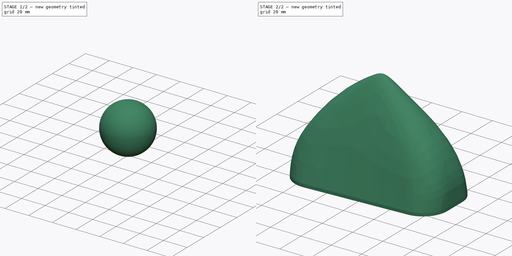
[diagram: build sequence overview — one tinted view per stage of 2, left to right]
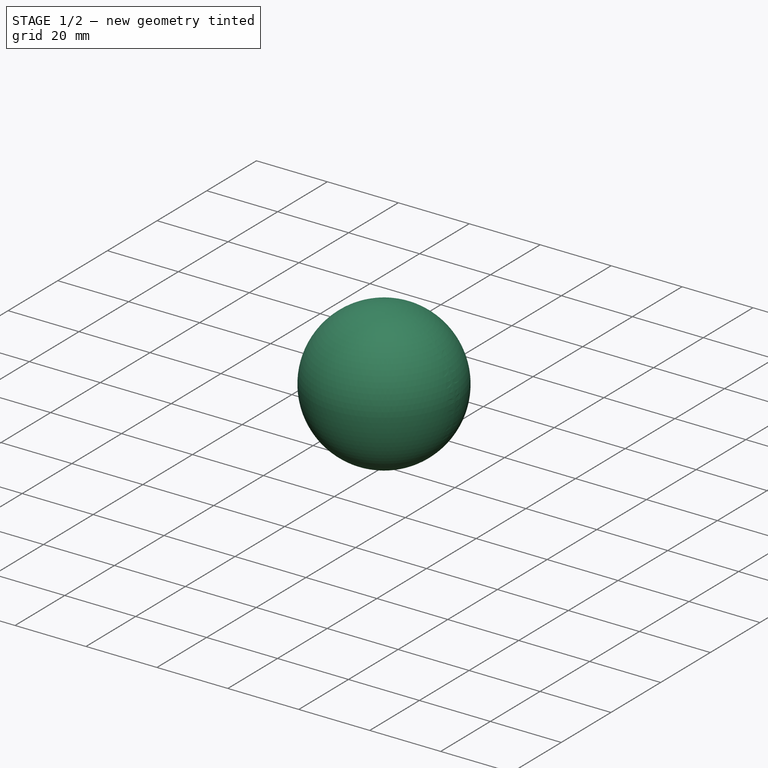
[diagram: stage 1 of 2 — iso view after this stage's code; geometry added in this stage tinted green]
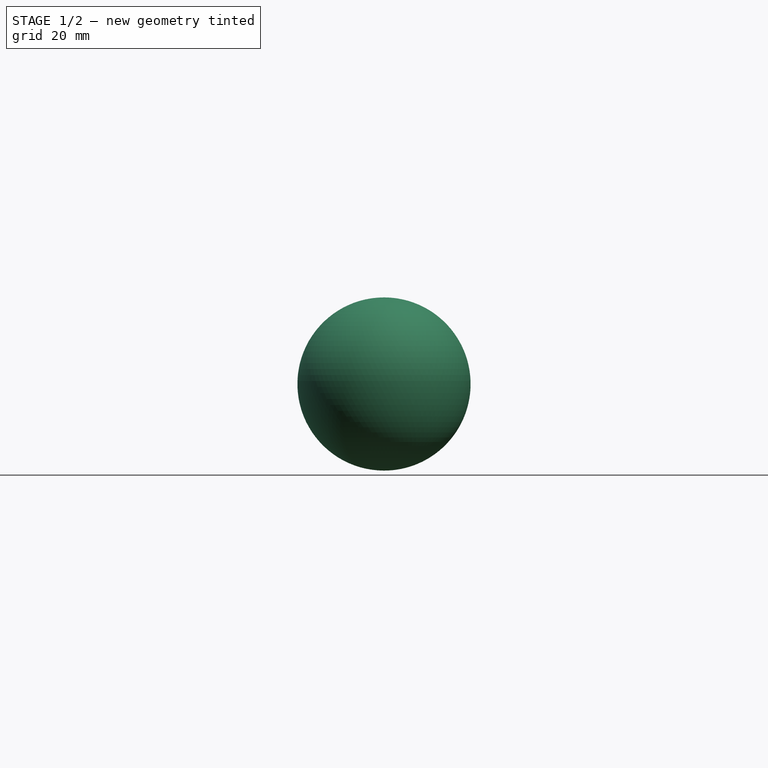
[diagram: stage 1 of 2 — front view after this stage's code; geometry added in this stage tinted green]
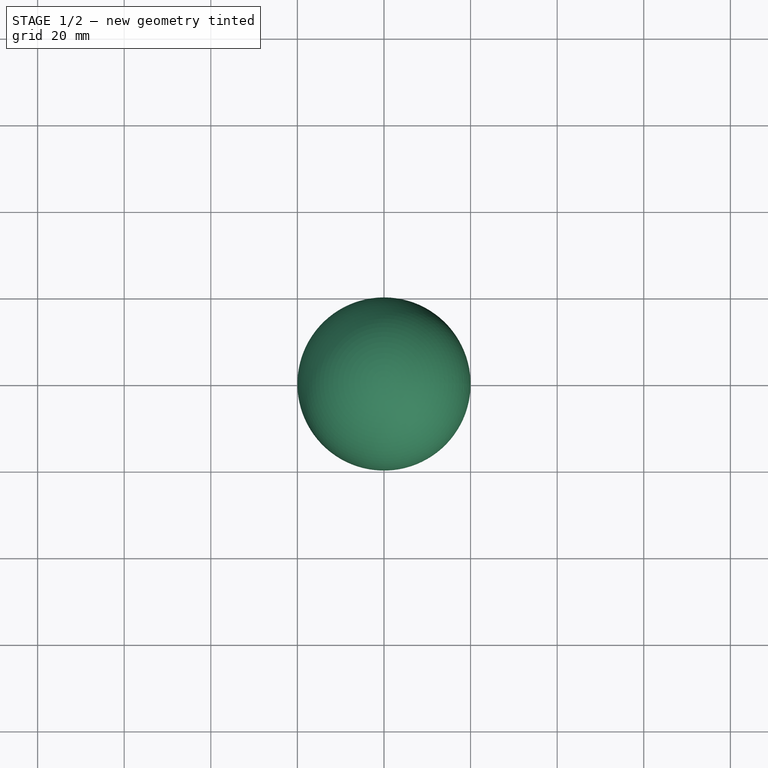
[diagram: stage 1 of 2 — top view after this stage's code; geometry added in this stage tinted green]
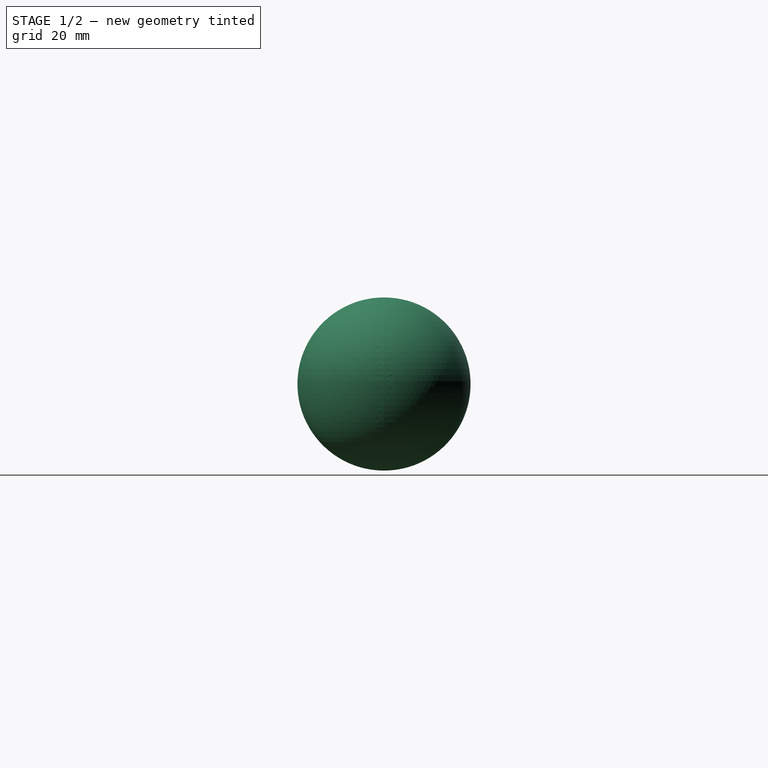
[diagram: stage 1 of 2 — right view after this stage's code; geometry added in this stage tinted green]
FCSTD DOCUMENT  (FreeCAD 0.21RUnknown)
Label: part32
License: All rights reserved
LicenseURL: http://en.wikipedia.org/wiki/All_rights_reserved
objects: Sketcher::SketchObject×3, Surface::Filling×1, Part::Extrusion×1, Part::MultiFuse×1, Part::Offset×1, Part::Sphere×1, Part::Feature×1, Part::Cut×1
note: 10 computed .brp shape members not serialized (recipe doc carries the construction recipe); baked Part::Feature solids carry a one-line shape summary decoded from their .brp

FEATURE [Sketcher::SketchObject] Sketch  label="BaseSketch"
  FullyConstrained = false
  sketch-geometry (10):
    g0: ArcOfCircle CenterX=-32.9186 CenterY=12.0697 CenterZ=0 NormalX=0 NormalY=0 NormalZ=1 AngleXU=0 Radius=15.8651 StartAngle=1.41817 EndAngle=3.14159
    g1: LineSegment StartX=-30.5066 StartY=27.7503 StartZ=0 EndX=35.3306 EndY=17.6232 EndZ=0
    g2: ArcOfCircle CenterX=32.9186 CenterY=1.94258 CenterZ=0 NormalX=0 NormalY=0 NormalZ=1 AngleXU=0 Radius=15.8651 StartAngle=1e-16 EndAngle=1.41817
    g3: LineSegment StartX=48.7836 StartY=1.94258 StartZ=0 EndX=48.7836 EndY=-12.0697 EndZ=0
    g4: ArcOfCircle CenterX=32.9186 CenterY=-12.0697 CenterZ=0 NormalX=0 NormalY=0 NormalZ=1 AngleXU=0 Radius=15.8651 StartAngle=4.76845 EndAngle=6.28319
    g5: LineSegment StartX=33.8075 StartY=-27.9098 StartZ=0 EndX=-32.0297 EndY=-31.6044 EndZ=0
    g6: ArcOfCircle CenterX=-32.9186 CenterY=-15.7643 CenterZ=0 NormalX=0 NormalY=0 NormalZ=1 AngleXU=0 Radius=15.8651 StartAngle=3.14159 EndAngle=4.76845
    g7: LineSegment StartX=-48.7836 StartY=-15.7643 StartZ=0 EndX=-48.7836 EndY=12.0697 EndZ=0
    g8: GeomPoint X=-48.7836 Y=30.5617 Z=0
    g9: GeomPoint X=48.7836 Y=-27.0694 Z=0
  constraints (18):
    c: Tangent(g0,g1) = 1.5708
    c: Tangent(g1,g2) = 1.5708
    c: Tangent(g2,g3) = 1.5708
    c: Tangent(g3,g4) = 1.5708
    c: Tangent(g4,g5) = 1.5708
    c: Tangent(g5,g6) = 1.5708
    c: Tangent(g6,g7) = 1.5708
    c: Tangent(g7,g0) = 1.5708
    c: Vertical(g3)
    c: Vertical(g7)
    c: Equal(g0,g2)
    c: Equal(g2,g4)
    c: Equal(g4,g6)
    c: PointOnObject(g8,g1)
    c: PointOnObject(g8,g7)
    c: PointOnObject(g9,g3)
    c: PointOnObject(g9,g5)
    c: Symmetric(g0,g4,g-1)
FEATURE [Sketcher::SketchObject] Sketch001  label="SurfaceProfile"
  AttachmentOffset = pos=(0,0,0) rot=(1,0,0;1.5708rad)
  ExternalGeometry = -> [Sketch]
  FullyConstrained = true
  MapMode = 49
  Placement = pos=(-48.7836,-15.7643,0) rot=(0.999642,0.01892,0.01892;1.57115rad)
  Support = -> [Sketch]
  sketch-geometry (1):
    g0: ArcOfCircle CenterX=48.8186 CenterY=0 CenterZ=0 NormalX=0 NormalY=0 NormalZ=1 AngleXU=0 Radius=48.8186 StartAngle=0 EndAngle=3.14159
  constraints (3):
    c: Coincident(g0,g-3)
    c: Coincident(g0,g-1)
    c: PointOnObject(g0,g-1)
FEATURE [Sketcher::SketchObject] Sketch002  label="SurfaceProfile2"
  AttachmentOffset = pos=(0,0,0) rot=(1,0,0;1.5708rad)
  ExternalGeometry = -> [Sketch]
  FullyConstrained = true
  MapMode = 49
  Placement = pos=(-48.7836,12.0697,0) rot=(0.997332,-0.051621,-0.051621;1.57347rad)
  Support = -> [Sketch]
  sketch-geometry (1):
    g0: ArcOfCircle CenterX=49.0457 CenterY=0 CenterZ=0 NormalX=0 NormalY=0 NormalZ=1 AngleXU=0 Radius=49.0457 StartAngle=-2.7e-15 EndAngle=3.14159
  constraints (3):
    c: Coincident(g0,g-1)
    c: Coincident(g0,g-3)
    c: PointOnObject(g0,g-1)
FEATURE [Surface::Filling] Surface
  Anisotropy = false
  BoundaryEdges = -> [Sketch]
  BoundaryOrder = [0,0,0,0,0,0,0,0]
  Degree = 3
  Iterations = 2
  MaximumDegree = 8
  MaximumSegments = 9
  PointsOnCurve = 15
  TolAngular = 0.01
  TolCurvature = 0.1
  Tolerance2d = 1e-05
  Tolerance3d = 0.0001
  UnboundEdges = -> [Sketch001,Sketch002]
  UnboundOrder = [0,0]
FEATURE [Part::Extrusion] Extrude
  Base = -> Sketch
  Dir = (0,0,1)
  DirMode = 2
  FaceMakerClass = Part::FaceMakerBullseye
  LengthFwd = -2
  LengthRev = 0
  Solid = false
  Symmetric = false
FEATURE [Part::MultiFuse] Fusion
  Shapes = -> [Surface,Extrude]
FEATURE [Part::Offset] Offset
  Fill = true
  Intersection = false
  Join = 0
  Mode = 0
  SelfIntersection = false
  Source = -> Fusion
  Value = -5
FEATURE [Part::Sphere] Sphere
  Angle1 = -90
  Angle2 = 90
  Angle3 = 360
  AttacherType = Attacher::AttachEngine3D
  Placement = pos=(0,20,24) rot=(0,0,1;0rad)
  Radius = 20
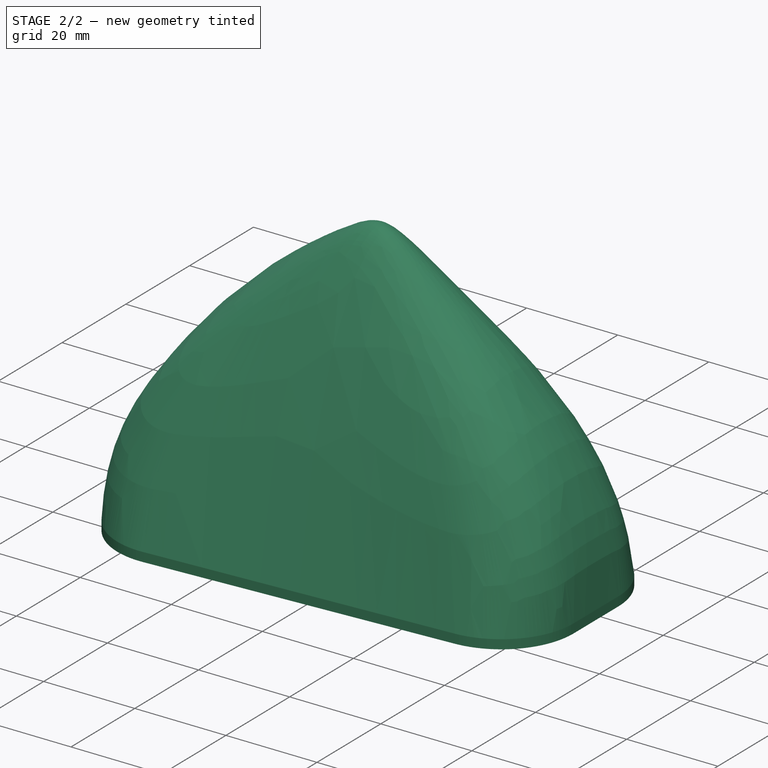
[diagram: stage 2 of 2 — iso view after this stage's code; geometry added in this stage tinted green]
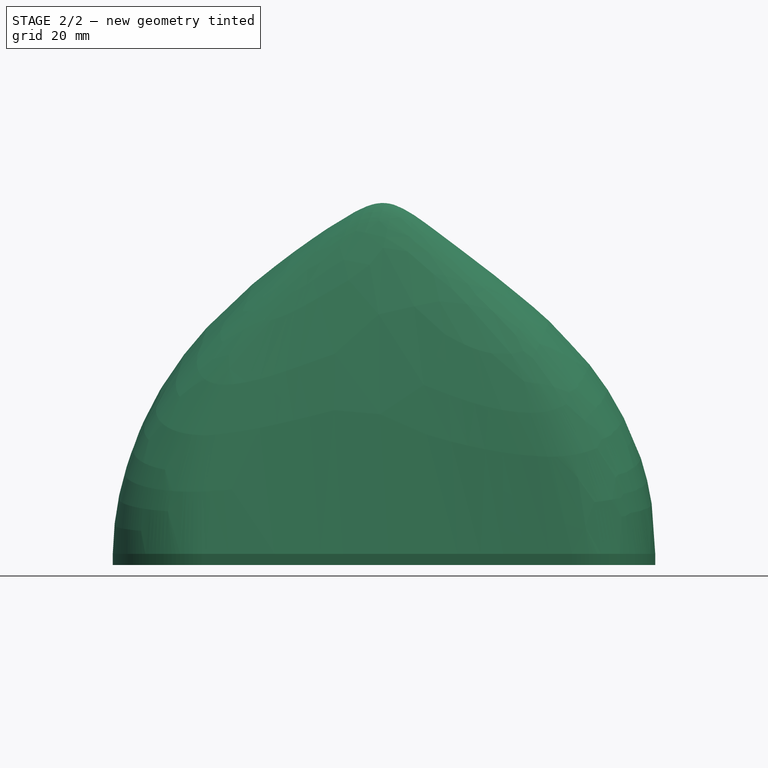
[diagram: stage 2 of 2 — front view after this stage's code; geometry added in this stage tinted green]
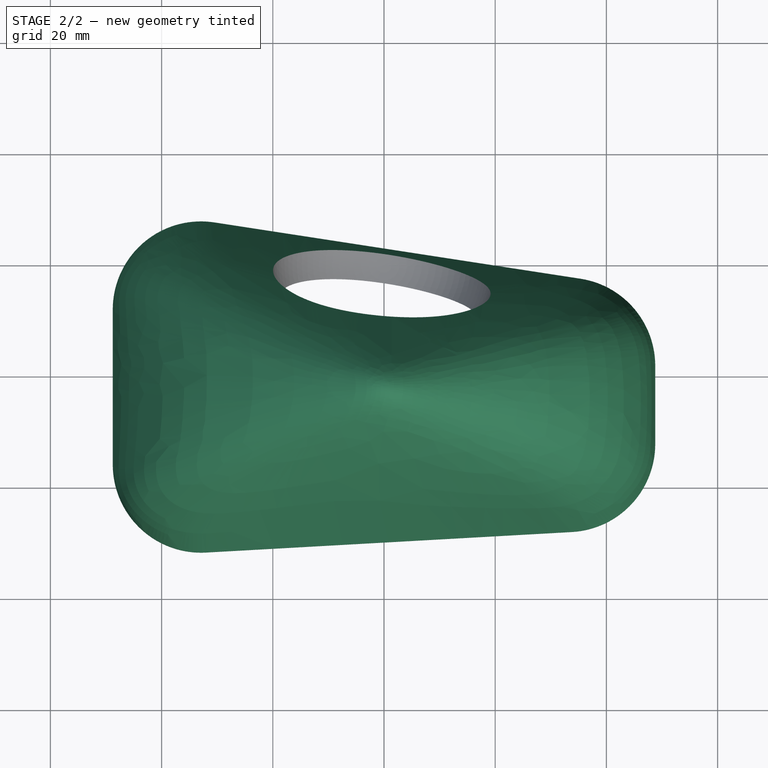
[diagram: stage 2 of 2 — top view after this stage's code; geometry added in this stage tinted green]
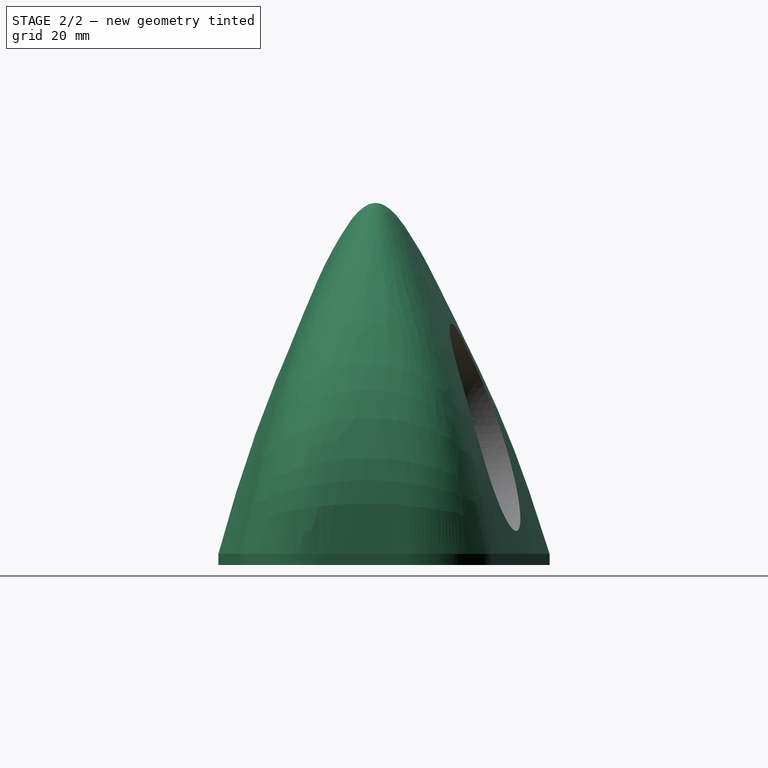
[diagram: stage 2 of 2 — right view after this stage's code; geometry added in this stage tinted green]
FEATURE [Part::Feature] Offset_solid  label="Offset (Solid)"
  shape: bbox 128.3 x 110.9 x 140.3 mm, 26 faces (baked)
FEATURE [Part::Cut] Cut
  Base = -> Offset_solid
  Tool = -> Sphere
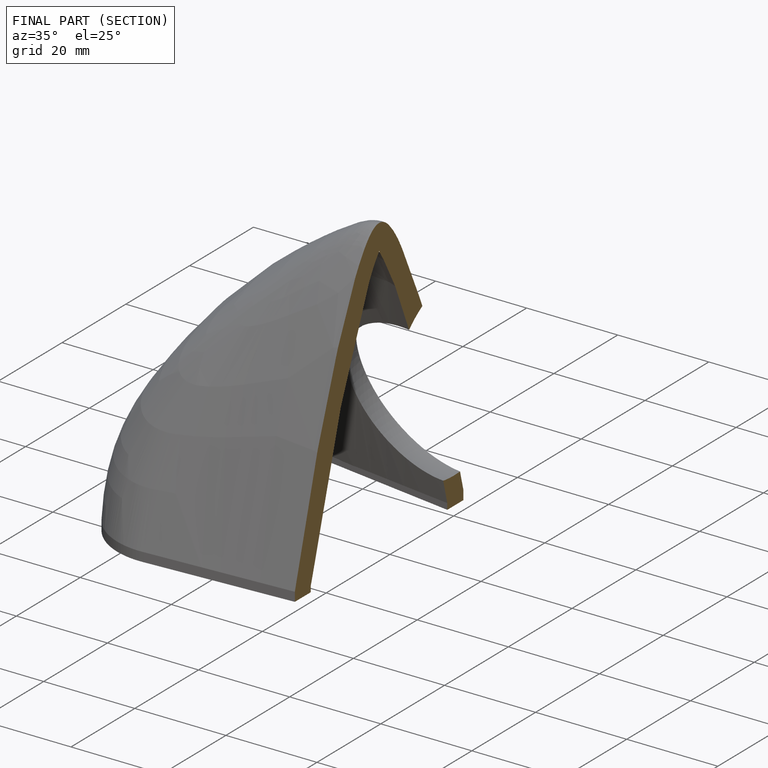
[diagram: finished part — half-section view (interior)]
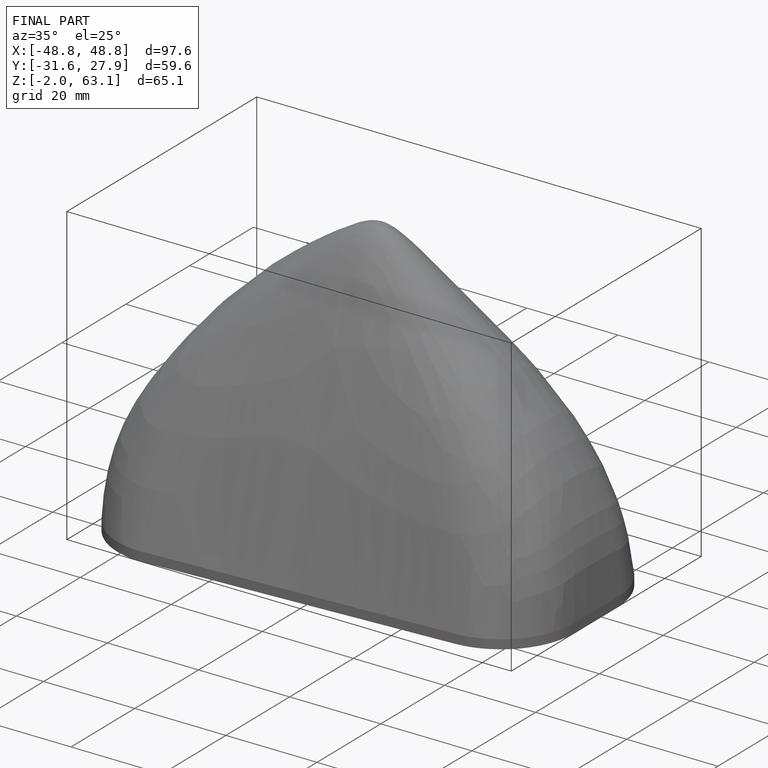
[diagram: finished part — iso view with bounding-box wireframe]
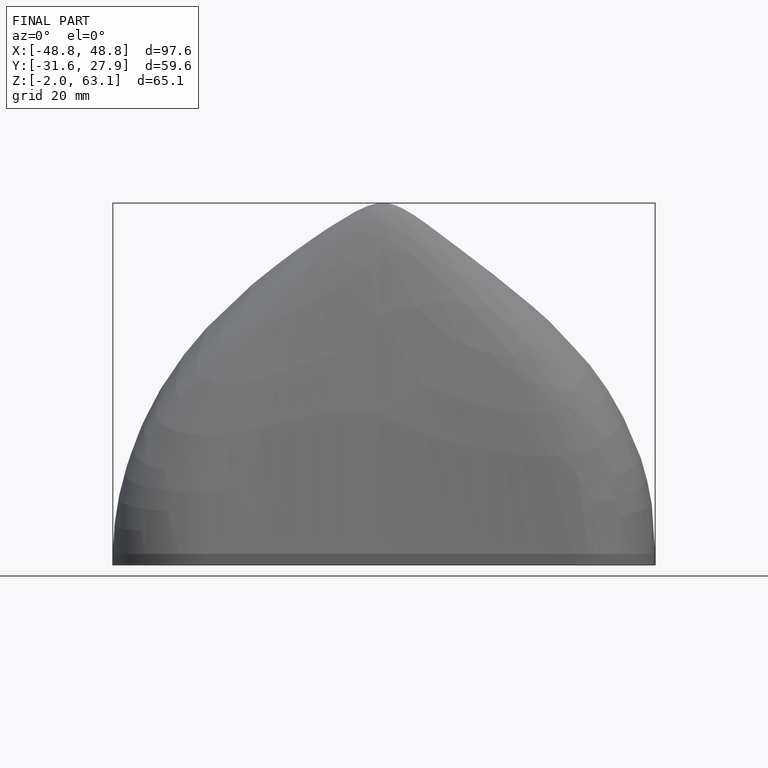
[diagram: finished part — front view with bounding-box wireframe]
